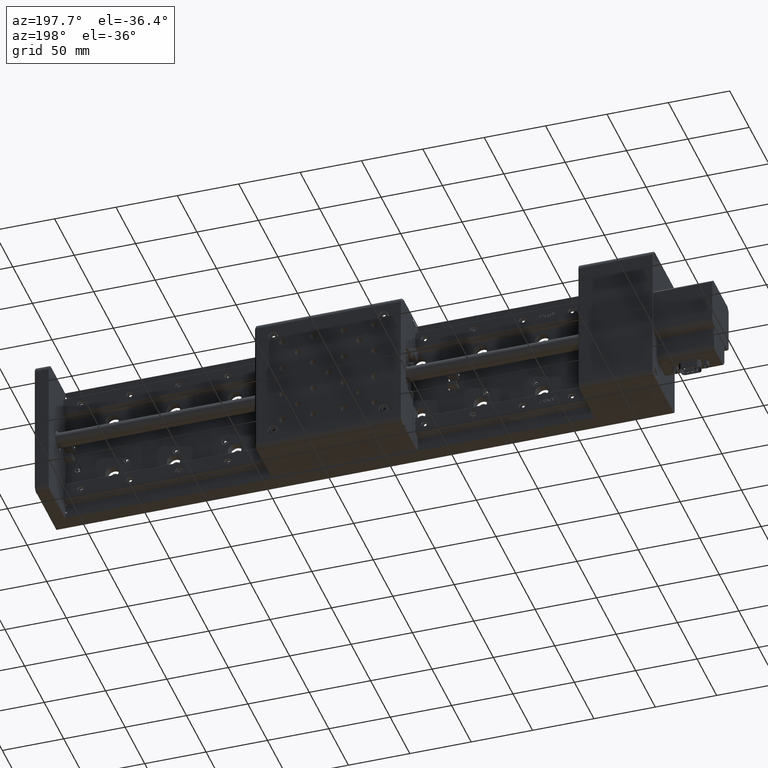
[diagram: clean part render]
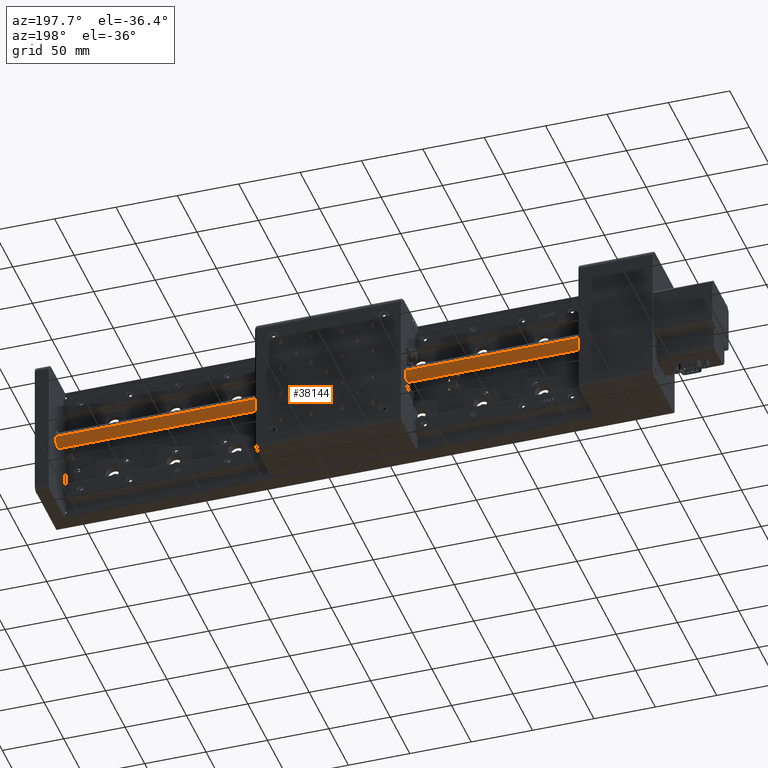
[diagram: same view with one face highlighted and labeled with its STEP entity id]
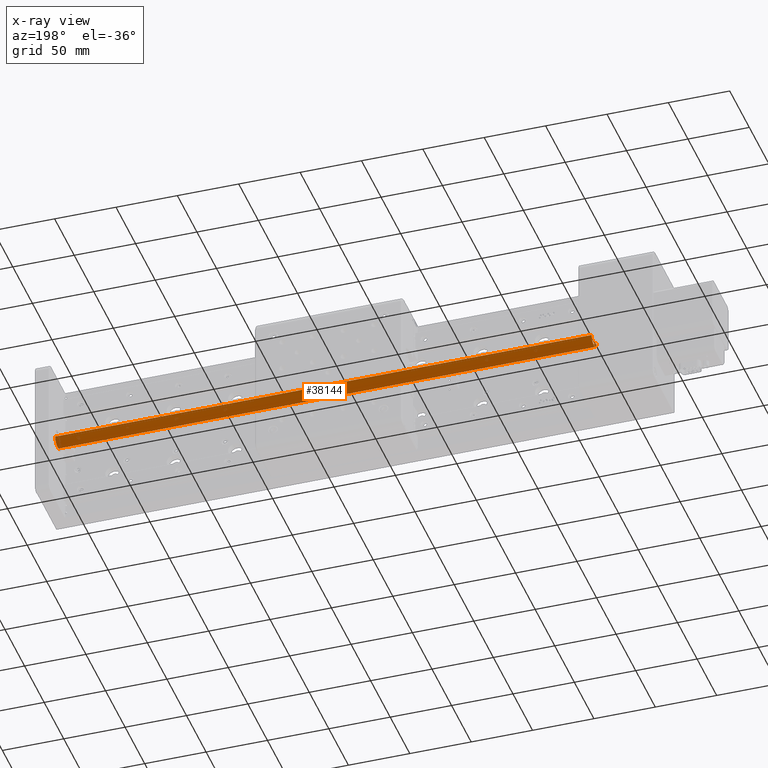
[diagram: x-ray of the same camera — body ghosted, the highlighted face saturated]
A machine part, auxiliary view. The second image highlights one B-rep face of the part: STEP entity #38144.
The next image is the same camera in x-ray: the body ghosted, the highlighted face saturated — about 0% of this face is hidden behind the body in this view.
In plain terms, the highlighted cylindrical surface (edge-blend (fillet) strip) has radius 6 mm, axis along (-1, -0, -0).
Its self-contained STEP definition (entity closure, byte-faithful):
#276 = CARTESIAN_POINT ( 'NONE',  ( 114.3819436050658700, 27.99999999977690000, 257.9914224105211800 ) ) ;
#869 = LINE ( 'NONE', #23254, #3560 ) ;
#1573 = LINE ( 'NONE', #276, #13747 ) ;
#3560 = VECTOR ( 'NONE', #16289, 1000.000000000000000 ) ;
#5390 = AXIS2_PLACEMENT_3D ( 'NONE', #20649, #37748, #14197 ) ;
#5433 = ORIENTED_EDGE ( 'NONE', *, *, #34200, .F. ) ;
#6073 = CARTESIAN_POINT ( 'NONE',  ( 114.3819436050658700, 33.99999999977690400, 257.9914224105264100 ) ) ;
#7829 = CIRCLE ( 'NONE', #5390, 6.000000000000001800 ) ;
#9403 = AXIS2_PLACEMENT_3D ( 'NONE', #12636, #33215, #26204 ) ;
#11873 = FACE_OUTER_BOUND ( 'NONE', #12392, .T. ) ;
#12392 = EDGE_LOOP ( 'NONE', ( #26137, #29551, #5433, #23610 ) ) ;
#12636 = CARTESIAN_POINT ( 'NONE',  ( -322.6180563949341700, 33.99999999977674000, 257.9914224105216900 ) ) ;
#13404 = CYLINDRICAL_SURFACE ( 'NONE', #27870, 5.999999999999998200 ) ;
#13747 = VECTOR ( 'NONE', #41011, 1000.000000000000000 ) ;
#14197 = DIRECTION ( 'NONE',  ( 0.0000000000000000000, -1.000000000000000000, -8.696747026230390500E-013 ) ) ;
#15459 = CIRCLE ( 'NONE', #9403, 5.999999999999998200 ) ;
#16289 = DIRECTION ( 'NONE',  ( -1.000000000000000000, -3.620632788599709700E-016, -1.080629326223752400E-014 ) ) ;
#20261 = CARTESIAN_POINT ( 'NONE',  ( 114.3819436050658700, 39.99999999977690400, 257.9914224105293100 ) ) ;
#20649 = CARTESIAN_POINT ( 'NONE',  ( 114.3819436050658700, 33.99999999977690400, 257.9914224105264100 ) ) ;
#23147 = VERTEX_POINT ( 'NONE', #36706 ) ;
#23152 = EDGE_CURVE ( 'NONE', #32424, #42080, #7829, .T. ) ;
#23254 = CARTESIAN_POINT ( 'NONE',  ( 114.3819436050658700, 39.99999999977690400, 257.9914224105316400 ) ) ;
#23610 = ORIENTED_EDGE ( 'NONE', *, *, #31184, .F. ) ;
#24082 = VERTEX_POINT ( 'NONE', #33291 ) ;
#26137 = ORIENTED_EDGE ( 'NONE', *, *, #23152, .F. ) ;
#26204 = DIRECTION ( 'NONE',  ( 0.0000000000000000000, 1.000000000000000000, 8.696747026230395600E-013 ) ) ;
#27870 = AXIS2_PLACEMENT_3D ( 'NONE', #6073, #29581, #36855 ) ;
#29551 = ORIENTED_EDGE ( 'NONE', *, *, #29686, .T. ) ;
#29581 = DIRECTION ( 'NONE',  ( -1.000000000000000000, -3.620632788599709700E-016, -1.080629326223752400E-014 ) ) ;
#29686 = EDGE_CURVE ( 'NONE', #32424, #24082, #1573, .T. ) ;
#31184 = EDGE_CURVE ( 'NONE', #42080, #23147, #869, .T. ) ;
#32424 = VERTEX_POINT ( 'NONE', #33101 ) ;
#33101 = CARTESIAN_POINT ( 'NONE',  ( 114.3819436050658700, 27.99999999977690000, 257.9914224105188500 ) ) ;
#33215 = DIRECTION ( 'NONE',  ( -1.000000000000000000, -3.620632788599709700E-016, -1.080629326223752400E-014 ) ) ;
#33291 = CARTESIAN_POINT ( 'NONE',  ( -322.6180563949341700, 27.99999999977674000, 257.9914224105188500 ) ) ;
#34200 = EDGE_CURVE ( 'NONE', #23147, #24082, #15459, .T. ) ;
#36706 = CARTESIAN_POINT ( 'NONE',  ( -322.6180563949341700, 39.99999999977674000, 257.9914224105269200 ) ) ;
#36855 = DIRECTION ( 'NONE',  ( 0.0000000000000000000, 1.000000000000000000, 8.696747026230395600E-013 ) ) ;
#37748 = DIRECTION ( 'NONE',  ( 1.000000000000000000, 3.620632788599709700E-016, 1.080629326223752400E-014 ) ) ;
#38144 = ADVANCED_FACE ( 'NONE', ( #11873 ), #13404, .T. ) ;
#41011 = DIRECTION ( 'NONE',  ( -1.000000000000000000, -3.620632788599709700E-016, -1.080629326223752400E-014 ) ) ;
#42080 = VERTEX_POINT ( 'NONE', #20261 ) ;